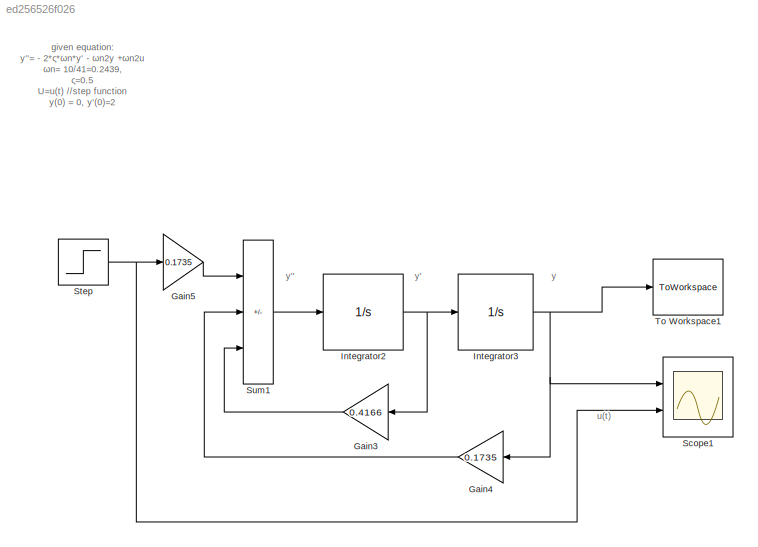
MODEL slx_ed256526f026
KIND model
CONFIG AbsTol = auto
CONFIG EnableMultiTasking = off
CONFIG FixedStep = auto
CONFIG MaxStep = auto
CONFIG MinStep = auto
CONFIG RelTol = 1e-3
CONFIG SampleTimeConstraint = Unconstrained
CONFIG SolverName = VariableStepAuto
CONFIG StartTime = 0.0
CONFIG StopTime = 10.0
BLOCK [Gain] Gain3
  Gain = 0.4166
BLOCK [Gain] Gain4
  Gain = 0.1735
BLOCK [Gain] Gain5
  Gain = 0.1735
BLOCK [Integrator] Integrator2
  InitialCondition = 2
  Ports = [1, 1]
BLOCK [Integrator] Integrator3
  Ports = [1, 1]
BLOCK [Scope] Scope1
  Floating = off
  NumInputPorts = 2
  Ports = [2]
  ScopeSpecificationString = Simulink.scopes.TimeScopeBlockCfg('CurrentConfiguration', extmgr.ConfigurationSet(extmgr.Configuration('Core','General UI',true,'FigureColor',[1 1 1]),extmgr.Configuration('Core','Source UI',true),extmgr.Configuration('Sources','WiredSimulink',true),extmgr.Configuration('Visuals','Time Domain',true,'SerializedDisplays',{struct('MinYLimReal','-0.61521','MaxYLimReal','5.53689','YLabelReal','','MinYL...<+2408ch>
BLOCK [Step] Step
  SampleTime = 0
BLOCK [Sum] Sum1
  IconShape = rectangular
  Inputs = +--
  Ports = [3, 1]
BLOCK [ToWorkspace] To Workspace1
  FixptAsFi = on
  MaxDataPoints = inf
  Ports = [1]
  SampleTime = -1
  SaveFormat = Timeseries
  VariableName = simout1
ANNOTATION (root): u(t)
ANNOTATION (root): given equation: y''= - 2* ς* ω n* y' - ω n 2 y +ω n 2 u ω n= 10/41=0.2439 , ς =0.5 U=u(t) //step function y(0) = 0, y'(0)=2
ANNOTATION (root): y''
ANNOTATION (root): y'
ANNOTATION (root): y
LINE Gain3:1 -> Sum1:3
LINE Gain4:1 -> Sum1:2
LINE Gain5:1 -> Sum1:1
NET Integrator2:1 -> Gain3:1, Integrator3:1
NET Integrator3:1 -> Gain4:1, Scope1:1, To Workspace1:1
NET Step:1 -> Gain5:1, Scope1:2
LINE Sum1:1 -> Integrator2:1
note: NET lines group one-source signal fan-out (src -> all destinations, sorted); 1:1 wires keep LINE
